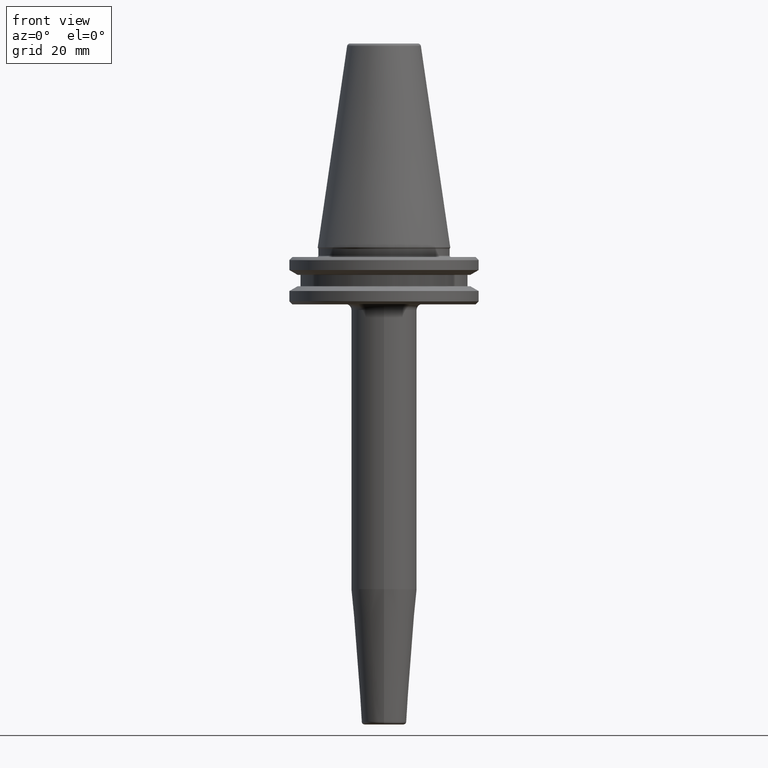
[diagram: clean part render]
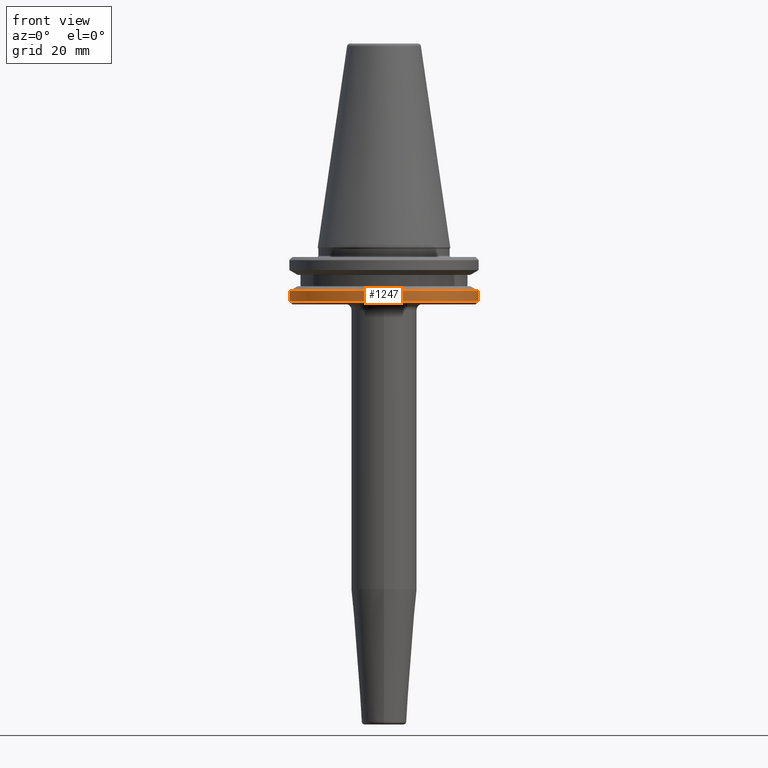
[diagram: same view with one face highlighted and labeled with its STEP entity id]
A machine part, front view. The second image highlights one B-rep face of the part: STEP entity #1247.
In plain terms, the highlighted cylindrical surface (partial cylindrical patch) has radius 31.75 mm, axis along (-0, -0, 1).
Its self-contained STEP definition (entity closure, byte-faithful):
#18 = EDGE_LOOP ( 'NONE', ( #1171, #403, #833, #1018 ) ) ;
#37 = DIRECTION ( 'NONE',  ( -0.0000000000000000000, -0.0000000000000000000, 1.000000000000000000 ) ) ;
#67 = FACE_OUTER_BOUND ( 'NONE', #18, .T. ) ;
#84 = CARTESIAN_POINT ( 'NONE',  ( 31.75000000000000000, 0.0000000000000000000, 113.5216080541959500 ) ) ;
#98 = AXIS2_PLACEMENT_3D ( 'NONE', #1203, #1097, #804 ) ;
#221 = AXIS2_PLACEMENT_3D ( 'NONE', #352, #450, #907 ) ;
#253 = EDGE_CURVE ( 'NONE', #897, #515, #366, .T. ) ;
#301 = CARTESIAN_POINT ( 'NONE',  ( 31.75000000000000000, 0.0000000000000000000, -14.62183664205671200 ) ) ;
#323 = CARTESIAN_POINT ( 'NONE',  ( 31.75000000000000000, 0.0000000000000000000, -17.93431457505076300 ) ) ;
#352 = CARTESIAN_POINT ( 'NONE',  ( 0.0000000000000000000, 0.0000000000000000000, 113.5216080541959500 ) ) ;
#366 = LINE ( 'NONE', #84, #851 ) ;
#403 = ORIENTED_EDGE ( 'NONE', *, *, #963, .T. ) ;
#450 = DIRECTION ( 'NONE',  ( -0.0000000000000000000, -0.0000000000000000000, 1.000000000000000000 ) ) ;
#489 = CARTESIAN_POINT ( 'NONE',  ( -31.75000000000000000, 3.888253587292846500E-015, -17.93431457505076300 ) ) ;
#515 = VERTEX_POINT ( 'NONE', #301 ) ;
#534 = CARTESIAN_POINT ( 'NONE',  ( -31.75000000000000000, 3.888253587292846500E-015, -14.62183664205671200 ) ) ;
#569 = VERTEX_POINT ( 'NONE', #489 ) ;
#571 = CARTESIAN_POINT ( 'NONE',  ( -31.75000000000000000, 3.888253587292846500E-015, 113.5216080541959500 ) ) ;
#612 = VECTOR ( 'NONE', #999, 1000.000000000000000 ) ;
#646 = AXIS2_PLACEMENT_3D ( 'NONE', #709, #37, #1000 ) ;
#709 = CARTESIAN_POINT ( 'NONE',  ( 0.0000000000000000000, 0.0000000000000000000, -17.93431457505076300 ) ) ;
#719 = CIRCLE ( 'NONE', #646, 31.75000000000000000 ) ;
#798 = EDGE_CURVE ( 'NONE', #569, #1195, #1076, .T. ) ;
#804 = DIRECTION ( 'NONE',  ( 1.000000000000000000, 0.0000000000000000000, 0.0000000000000000000 ) ) ;
#833 = ORIENTED_EDGE ( 'NONE', *, *, #253, .T. ) ;
#851 = VECTOR ( 'NONE', #1153, 1000.000000000000000 ) ;
#897 = VERTEX_POINT ( 'NONE', #323 ) ;
#907 = DIRECTION ( 'NONE',  ( 1.000000000000000000, 0.0000000000000000000, 0.0000000000000000000 ) ) ;
#959 = EDGE_CURVE ( 'NONE', #1195, #515, #1214, .T. ) ;
#963 = EDGE_CURVE ( 'NONE', #569, #897, #719, .T. ) ;
#999 = DIRECTION ( 'NONE',  ( -0.0000000000000000000, -0.0000000000000000000, 1.000000000000000000 ) ) ;
#1000 = DIRECTION ( 'NONE',  ( 1.000000000000000000, 0.0000000000000000000, 0.0000000000000000000 ) ) ;
#1004 = CYLINDRICAL_SURFACE ( 'NONE', #221, 31.75000000000000000 ) ;
#1018 = ORIENTED_EDGE ( 'NONE', *, *, #959, .F. ) ;
#1076 = LINE ( 'NONE', #571, #612 ) ;
#1097 = DIRECTION ( 'NONE',  ( -0.0000000000000000000, -0.0000000000000000000, 1.000000000000000000 ) ) ;
#1153 = DIRECTION ( 'NONE',  ( -0.0000000000000000000, -0.0000000000000000000, 1.000000000000000000 ) ) ;
#1171 = ORIENTED_EDGE ( 'NONE', *, *, #798, .F. ) ;
#1195 = VERTEX_POINT ( 'NONE', #534 ) ;
#1203 = CARTESIAN_POINT ( 'NONE',  ( 0.0000000000000000000, 0.0000000000000000000, -14.62183664205671200 ) ) ;
#1214 = CIRCLE ( 'NONE', #98, 31.75000000000000000 ) ;
#1247 = ADVANCED_FACE ( 'NONE', ( #67 ), #1004, .T. ) ;